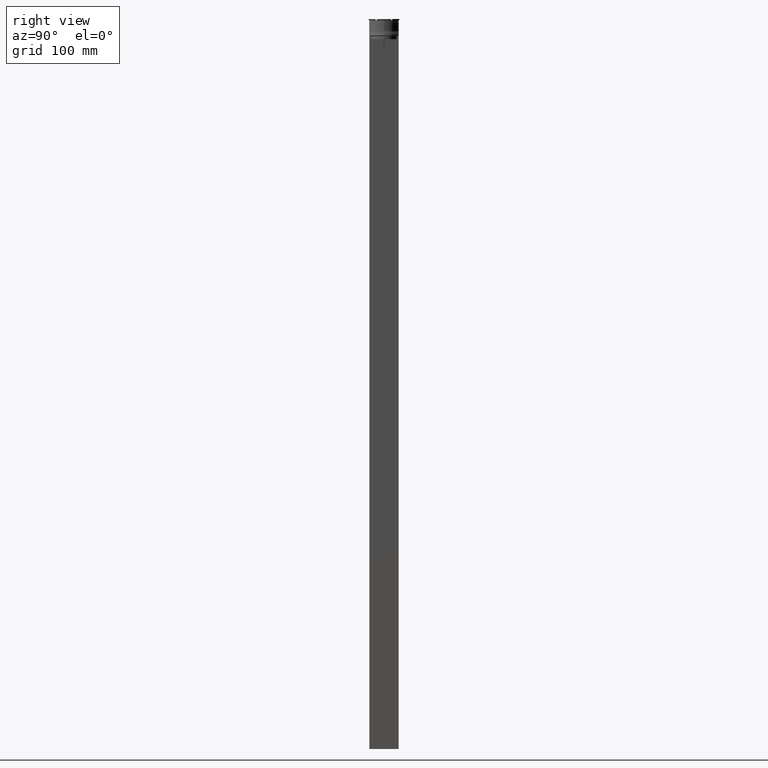
[diagram: clean part render]
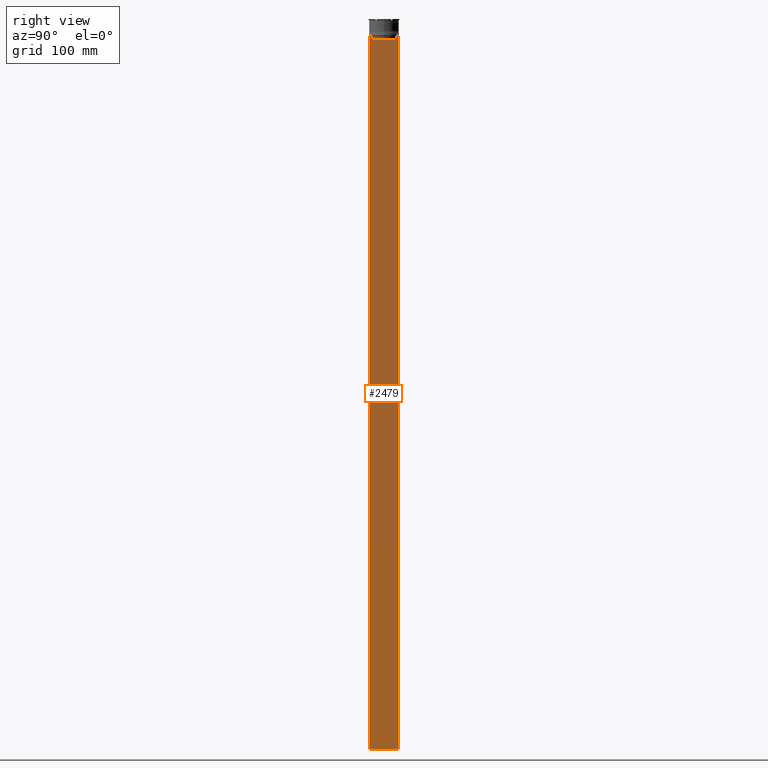
[diagram: same view with one face highlighted and labeled with its STEP entity id]
A machine part, right view. The second image highlights one B-rep face of the part: STEP entity #2479.
In plain terms, the highlighted planar face has unit normal (-1, 0, 0).
Its self-contained STEP definition (entity closure, byte-faithful):
#18 = VERTEX_POINT ( 'NONE', #2241 ) ;
#50 = DIRECTION ( 'NONE',  ( 0.000000000000000000, 0.000000000000000000, -1.000000000000000000 ) ) ;
#61 = CARTESIAN_POINT ( 'NONE',  ( 0.5000000000000002220, -11.22219891450652973, -14.16667035398018903 ) ) ;
#64 = LINE ( 'NONE', #942, #1129 ) ;
#93 = DIRECTION ( 'NONE',  ( 0.000000000000000000, 1.000000000000000000, 0.000000000000000000 ) ) ;
#94 = CARTESIAN_POINT ( 'NONE',  ( 0.5000000000000002220, 10.88852607105296144, -17.00000000000000000 ) ) ;
#97 = EDGE_CURVE ( 'NONE', #1327, #18, #308, .T. ) ;
#100 = EDGE_CURVE ( 'NONE', #973, #1222, #319, .T. ) ;
#144 = DIRECTION ( 'NONE',  ( -1.000000000000000000, 0.000000000000000000, 0.000000000000000000 ) ) ;
#166 = VECTOR ( 'NONE', #383, 1000.000000000000000 ) ;
#195 = VECTOR ( 'NONE', #1463, 1000.000000000000000 ) ;
#199 = VERTEX_POINT ( 'NONE', #822 ) ;
#214 = ORIENTED_EDGE ( 'NONE', *, *, #1413, .T. ) ;
#276 = CARTESIAN_POINT ( 'NONE',  ( 0.5000000000000002220, -10.88852607105296322, -14.50000000000000000 ) ) ;
#308 = LINE ( 'NONE', #1158, #2068 ) ;
#319 = LINE ( 'NONE', #1349, #492 ) ;
#330 = CARTESIAN_POINT ( 'NONE',  ( 0.5000000000000002220, 10.88852607105296322, 0.000000000000000000 ) ) ;
#331 = ORIENTED_EDGE ( 'NONE', *, *, #1537, .T. ) ;
#383 = DIRECTION ( 'NONE',  ( 0.000000000000000000, -1.000000000000000000, 0.000000000000000000 ) ) ;
#392 = LINE ( 'NONE', #834, #768 ) ;
#398 = CARTESIAN_POINT ( 'NONE',  ( 0.5000000000000002220, -12.25000000000000711, -14.00000000000000178 ) ) ;
#420 = CARTESIAN_POINT ( 'NONE',  ( 0.5000000000000002220, 10.88852607105296322, -14.50000000000000000 ) ) ;
#426 = EDGE_CURVE ( 'NONE', #199, #1222, #432, .T. ) ;
#432 = LINE ( 'NONE', #1956, #584 ) ;
#486 = DIRECTION ( 'NONE',  ( 0.000000000000000000, -1.000000000000000000, 0.000000000000000000 ) ) ;
#492 = VECTOR ( 'NONE', #93, 1000.000000000000000 ) ;
#524 = CARTESIAN_POINT ( 'NONE',  ( 0.5000000000000002220, 11.38902980942626719, -14.00000000000000178 ) ) ;
#558 = PLANE ( 'NONE',  #2091 ) ;
#584 = VECTOR ( 'NONE', #50, 1000.000000000000000 ) ;
#587 = ORIENTED_EDGE ( 'NONE', *, *, #1778, .T. ) ;
#672 = ORIENTED_EDGE ( 'NONE', *, *, #100, .T. ) ;
#692 = ORIENTED_EDGE ( 'NONE', *, *, #97, .T. ) ;
#768 = VECTOR ( 'NONE', #2063, 1000.000000000000000 ) ;
#811 = VERTEX_POINT ( 'NONE', #1042 ) ;
#814 = FACE_OUTER_BOUND ( 'NONE', #2494, .T. ) ;
#822 = CARTESIAN_POINT ( 'NONE',  ( 0.5000000000000002220, 12.24999999999999289, -14.00000000000000178 ) ) ;
#834 = CARTESIAN_POINT ( 'NONE',  ( 0.5000000000000002220, -10.88852607105296322, 0.000000000000000000 ) ) ;
#913 = VERTEX_POINT ( 'NONE', #950 ) ;
#942 = CARTESIAN_POINT ( 'NONE',  ( 0.5000000000000002220, -12.25000000000000711, -14.00000000000000178 ) ) ;
#950 = CARTESIAN_POINT ( 'NONE',  ( 0.5000000000000002220, 10.88852607105296322, -14.50000000000000000 ) ) ;
#973 = VERTEX_POINT ( 'NONE', #1370 ) ;
#1024 = CARTESIAN_POINT ( 'NONE',  ( 0.5000000000000002220, -12.25000000000000711, -14.00000000000000178 ) ) ;
#1042 = CARTESIAN_POINT ( 'NONE',  ( 0.5000000000000002220, -11.38902980942626719, -14.00000000000000178 ) ) ;
#1061 = CARTESIAN_POINT ( 'NONE',  ( 0.5000000000000002220, 11.38902980942626719, -14.00000000000000178 ) ) ;
#1129 = VECTOR ( 'NONE', #2426, 1000.000000000000000 ) ;
#1158 = CARTESIAN_POINT ( 'NONE',  ( 0.5000000000000002220, 10.90000000000000213, -17.00000000000000000 ) ) ;
#1179 = CARTESIAN_POINT ( 'NONE',  ( 0.5000000000000002220, -11.38902980942626719, -14.00000000000000178 ) ) ;
#1181 = DIRECTION ( 'NONE',  ( 0.000000000000000000, 0.000000000000000000, -1.000000000000000000 ) ) ;
#1222 = VERTEX_POINT ( 'NONE', #2214 ) ;
#1263 = LINE ( 'NONE', #1677, #195 ) ;
#1267 = VERTEX_POINT ( 'NONE', #398 ) ;
#1302 = VECTOR ( 'NONE', #1181, 1000.000000000000000 ) ;
#1327 = VERTEX_POINT ( 'NONE', #94 ) ;
#1349 = CARTESIAN_POINT ( 'NONE',  ( 0.5000000000000002220, -12.25000000000000711, -614.0000000000000000 ) ) ;
#1360 = CARTESIAN_POINT ( 'NONE',  ( 0.5000000000000002220, -11.05536450423839057, -14.33333718996393280 ) ) ;
#1370 = CARTESIAN_POINT ( 'NONE',  ( 0.5000000000000002220, -12.25000000000000711, -614.0000000000000000 ) ) ;
#1413 = EDGE_CURVE ( 'NONE', #1267, #973, #1263, .T. ) ;
#1420 = B_SPLINE_CURVE_WITH_KNOTS ( 'NONE', 3,
 ( #1061, #2180, #1746, #420 ),
 .UNSPECIFIED., .F., .F.,
 ( 4, 4 ),
 ( 0.01935560801904634073, 0.02006307108468586772 ),
 .UNSPECIFIED. ) ;
#1447 = EDGE_CURVE ( 'NONE', #18, #2491, #392, .T. ) ;
#1455 = CARTESIAN_POINT ( 'NONE',  ( 0.5000000000000002220, -12.25000000000000711, 10.52039967047845792 ) ) ;
#1463 = DIRECTION ( 'NONE',  ( 0.000000000000000000, 0.000000000000000000, -1.000000000000000000 ) ) ;
#1480 = ORIENTED_EDGE ( 'NONE', *, *, #426, .F. ) ;
#1482 = ORIENTED_EDGE ( 'NONE', *, *, #1447, .T. ) ;
#1537 = EDGE_CURVE ( 'NONE', #1732, #913, #1420, .T. ) ;
#1617 = B_SPLINE_CURVE_WITH_KNOTS ( 'NONE', 3,
 ( #276, #1360, #61, #1179 ),
 .UNSPECIFIED., .F., .F.,
 ( 4, 4 ),
 ( 0.05041323384703228633, 0.05112713601261608537 ),
 .UNSPECIFIED. ) ;
#1677 = CARTESIAN_POINT ( 'NONE',  ( 0.5000000000000002220, -12.25000000000000711, 10.52039967047845792 ) ) ;
#1689 = EDGE_CURVE ( 'NONE', #199, #1732, #64, .T. ) ;
#1732 = VERTEX_POINT ( 'NONE', #524 ) ;
#1746 = CARTESIAN_POINT ( 'NONE',  ( 0.5000000000000002220, 11.05536450345590538, -14.33333719074559376 ) ) ;
#1778 = EDGE_CURVE ( 'NONE', #913, #1327, #2249, .T. ) ;
#1889 = ORIENTED_EDGE ( 'NONE', *, *, #2467, .T. ) ;
#1920 = ORIENTED_EDGE ( 'NONE', *, *, #1689, .T. ) ;
#1956 = CARTESIAN_POINT ( 'NONE',  ( 0.5000000000000002220, 12.24999999999999289, 10.52039967047845792 ) ) ;
#2055 = LINE ( 'NONE', #1024, #166 ) ;
#2063 = DIRECTION ( 'NONE',  ( -0.000000000000000000, -0.000000000000000000, 1.000000000000000000 ) ) ;
#2068 = VECTOR ( 'NONE', #486, 1000.000000000000000 ) ;
#2091 = AXIS2_PLACEMENT_3D ( 'NONE', #1455, #144, #2271 ) ;
#2132 = EDGE_CURVE ( 'NONE', #2491, #811, #1617, .T. ) ;
#2141 = ORIENTED_EDGE ( 'NONE', *, *, #2132, .T. ) ;
#2180 = CARTESIAN_POINT ( 'NONE',  ( 0.5000000000000002220, 11.22219891375843304, -14.16667035472756808 ) ) ;
#2214 = CARTESIAN_POINT ( 'NONE',  ( 0.5000000000000002220, 12.24999999999999289, -614.0000000000000000 ) ) ;
#2241 = CARTESIAN_POINT ( 'NONE',  ( 0.5000000000000002220, -10.88852607105296144, -17.00000000000000000 ) ) ;
#2249 = LINE ( 'NONE', #330, #1302 ) ;
#2271 = DIRECTION ( 'NONE',  ( 0.000000000000000000, 0.000000000000000000, 1.000000000000000000 ) ) ;
#2426 = DIRECTION ( 'NONE',  ( 0.000000000000000000, -1.000000000000000000, 0.000000000000000000 ) ) ;
#2467 = EDGE_CURVE ( 'NONE', #811, #1267, #2055, .T. ) ;
#2479 = ADVANCED_FACE ( 'NONE', ( #814 ), #558, .F. ) ;
#2491 = VERTEX_POINT ( 'NONE', #2497 ) ;
#2494 = EDGE_LOOP ( 'NONE', ( #1920, #331, #587, #692, #1482, #2141, #1889, #214, #672, #1480 ) ) ;
#2497 = CARTESIAN_POINT ( 'NONE',  ( 0.5000000000000002220, -10.88852607105296322, -14.50000000000000000 ) ) ;